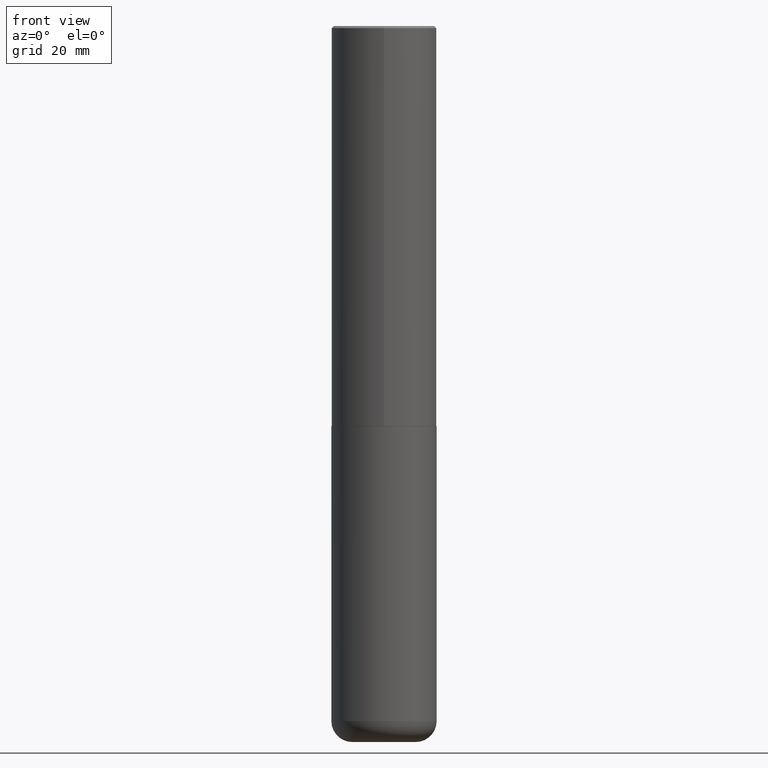
[diagram: clean part render]
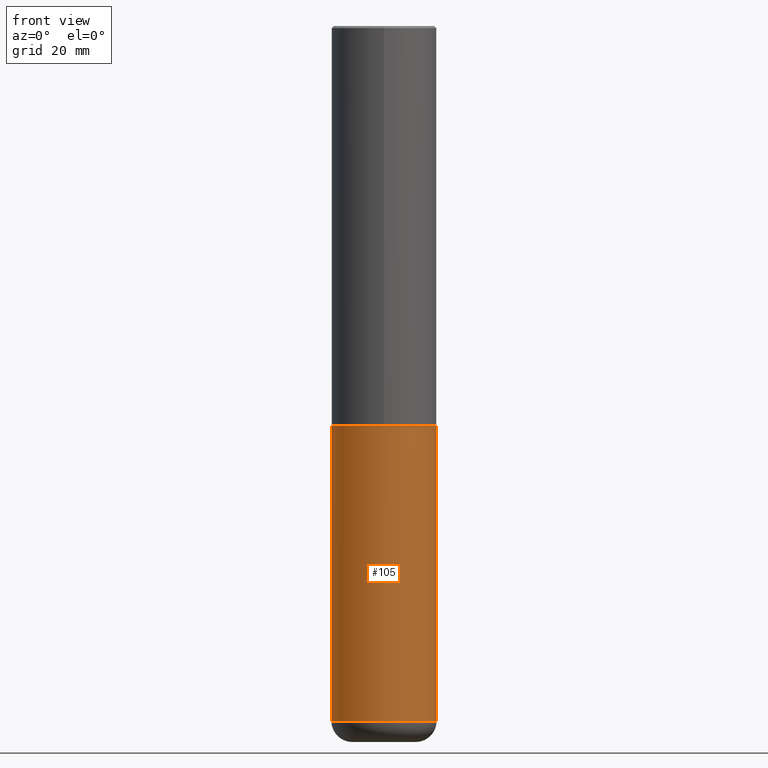
[diagram: same view with one face highlighted and labeled with its STEP entity id]
A machine part, front view. The second image highlights one B-rep face of the part: STEP entity #105.
In plain terms, the highlighted cylindrical surface (partial cylindrical patch) has radius 12.5006 mm, axis along (-0, 0, 1).
Its self-contained STEP definition (entity closure, byte-faithful):
#2 = ORIENTED_EDGE ( 'NONE', *, *, #114, .F. ) ;
#20 = CARTESIAN_POINT ( 'NONE',  ( 0.4921499999999999764, -3.436665081823295777E-15, 2.399810400207969603E-29 ) ) ;
#22 = CIRCLE ( 'NONE', #93, 0.4921499999999999764 ) ;
#29 = AXIS2_PLACEMENT_3D ( 'NONE', #48, #411, #190 ) ;
#38 = DIRECTION ( 'NONE',  ( -2.445468806185136597E-29, 3.491481338843145583E-15, 1.000000000000000000 ) ) ;
#48 = CARTESIAN_POINT ( 'NONE',  ( 0.000000000000000000, 0.000000000000000000, 0.000000000000000000 ) ) ;
#57 = ORIENTED_EDGE ( 'NONE', *, *, #131, .F. ) ;
#66 = CARTESIAN_POINT ( 'NONE',  ( 1.588576536497864771E-28, -2.268066277712507367E-14, -6.495999999999999552 ) ) ;
#78 = CARTESIAN_POINT ( 'NONE',  ( 9.146297882013029477E-29, -1.305848935540725085E-14, -3.740100000000000424 ) ) ;
#85 = CARTESIAN_POINT ( 'NONE',  ( -0.4921499999999999764, -1.437263999222282936E-14, -3.740100000000000424 ) ) ;
#93 = AXIS2_PLACEMENT_3D ( 'NONE', #78, #328, #395 ) ;
#105 = ADVANCED_FACE ( 'NONE', ( #140 ), #331, .T. ) ;
#114 = EDGE_CURVE ( 'NONE', #166, #164, #22, .T. ) ;
#118 = ORIENTED_EDGE ( 'NONE', *, *, #177, .T. ) ;
#129 = VECTOR ( 'NONE', #146, 39.37007874015748143 ) ;
#131 = EDGE_CURVE ( 'NONE', #174, #166, #273, .T. ) ;
#132 = AXIS2_PLACEMENT_3D ( 'NONE', #66, #38, #222 ) ;
#138 = DIRECTION ( 'NONE',  ( -2.445468806185136877E-29, 3.491481338843145188E-15, 1.000000000000000000 ) ) ;
#140 = FACE_OUTER_BOUND ( 'NONE', #300, .T. ) ;
#141 = VERTEX_POINT ( 'NONE', #268 ) ;
#146 = DIRECTION ( 'NONE',  ( -2.445468806185136877E-29, 3.491481338843145188E-15, 1.000000000000000000 ) ) ;
#164 = VERTEX_POINT ( 'NONE', #267 ) ;
#166 = VERTEX_POINT ( 'NONE', #85 ) ;
#174 = VERTEX_POINT ( 'NONE', #303 ) ;
#177 = EDGE_CURVE ( 'NONE', #141, #164, #338, .T. ) ;
#190 = DIRECTION ( 'NONE',  ( 1.000000000000000000, -6.982962677686265922E-15, 4.876176775795935793E-29 ) ) ;
#222 = DIRECTION ( 'NONE',  ( 1.000000000000000000, -6.982962677686265922E-15, 0.000000000000000000 ) ) ;
#237 = CARTESIAN_POINT ( 'NONE',  ( -0.4921499999999999764, 3.496936074043332897E-15, -2.420853904668951509E-29 ) ) ;
#258 = CIRCLE ( 'NONE', #132, 0.4921499999999999764 ) ;
#267 = CARTESIAN_POINT ( 'NONE',  ( 0.4921499999999999764, -1.649515443723054663E-14, -3.740100000000000424 ) ) ;
#268 = CARTESIAN_POINT ( 'NONE',  ( 0.4921499999999997543, -2.611732785894836787E-14, -6.495999999999999552 ) ) ;
#273 = LINE ( 'NONE', #237, #320 ) ;
#290 = EDGE_CURVE ( 'NONE', #174, #141, #258, .T. ) ;
#300 = EDGE_LOOP ( 'NONE', ( #57, #385, #118, #2 ) ) ;
#303 = CARTESIAN_POINT ( 'NONE',  ( -0.4921499999999997543, -1.918372670308173998E-14, -6.495999999999999552 ) ) ;
#320 = VECTOR ( 'NONE', #138, 39.37007874015748143 ) ;
#328 = DIRECTION ( 'NONE',  ( -2.445468806185136597E-29, 3.491481338843145583E-15, 1.000000000000000000 ) ) ;
#331 = CYLINDRICAL_SURFACE ( 'NONE', #29, 0.4921499999999999764 ) ;
#338 = LINE ( 'NONE', #20, #129 ) ;
#385 = ORIENTED_EDGE ( 'NONE', *, *, #290, .T. ) ;
#395 = DIRECTION ( 'NONE',  ( 1.000000000000000000, -6.982962677686265922E-15, 0.000000000000000000 ) ) ;
#411 = DIRECTION ( 'NONE',  ( -2.445468806185136597E-29, 3.491481338843145583E-15, 1.000000000000000000 ) ) ;